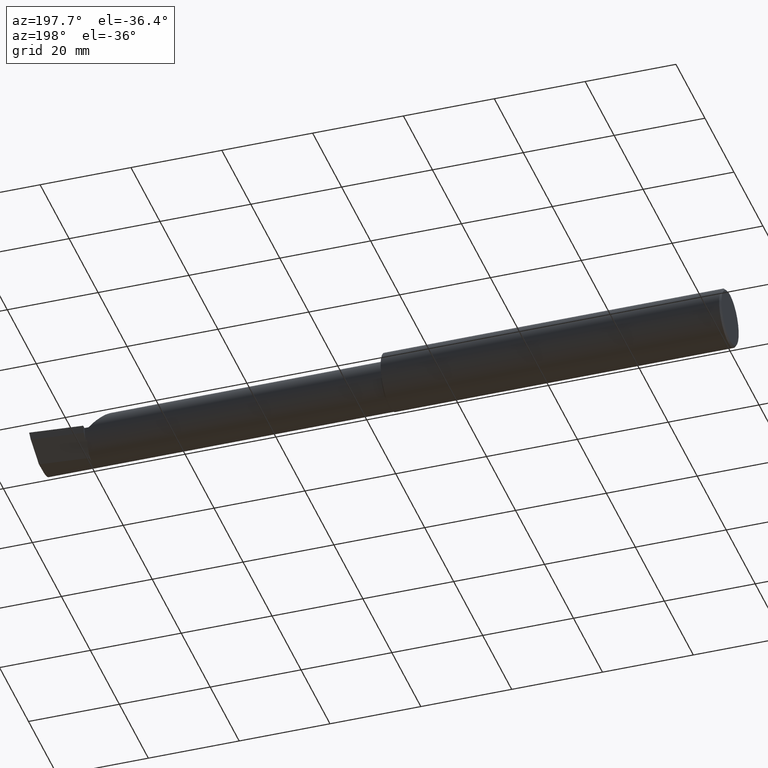
[diagram: clean part render]
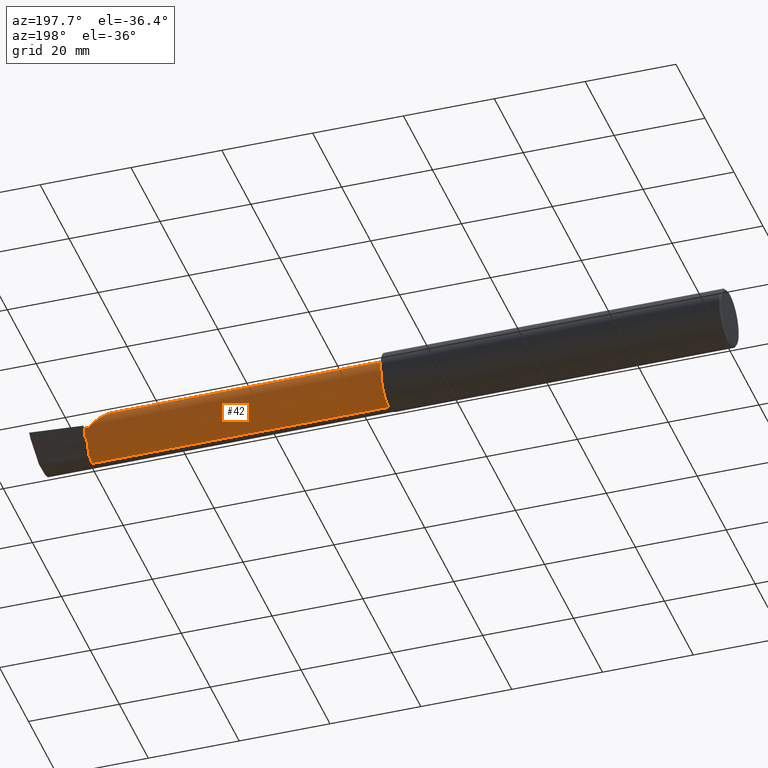
[diagram: same view with one face highlighted and labeled with its STEP entity id]
A machine part, auxiliary view. The second image highlights one B-rep face of the part: STEP entity #42.
In plain terms, the highlighted cylindrical surface (edge-blend (fillet) strip) has radius 5.414 mm, axis along (-1, -0, -0).
Its self-contained STEP definition (entity closure, byte-faithful):
#3 = CARTESIAN_POINT ( 'NONE',  ( 5.540349815208493567, 0.05592018782259736837, -0.1832193089843159595 ) ) ;
#10 = CARTESIAN_POINT ( 'NONE',  ( 4.678149108241350816E-32, 0.1601499999999999591, 4.235963549344508711E-16 ) ) ;
#22 =( BOUNDED_CURVE ( )  B_SPLINE_CURVE ( 3, ( #723, #344, #398, #389 ),
 .UNSPECIFIED., .F., .F. ) 
 B_SPLINE_CURVE_WITH_KNOTS ( ( 4, 4 ),
 ( 2.868174658477152583, 2.883234730632701304 ),
 .UNSPECIFIED. ) 
 CURVE ( )  GEOMETRIC_REPRESENTATION_ITEM ( )  RATIONAL_B_SPLINE_CURVE ( ( 1.000000000000000000, 0.9999810996081960335, 0.9999810996081960335, 1.000000000000000000 ) ) 
 REPRESENTATION_ITEM ( '' )  );
#28 = CARTESIAN_POINT ( 'NONE',  ( 5.296849999999999170, 0.07186037918017482151, 0.2131500000000000061 ) ) ;
#31 = LINE ( 'NONE', #554, #634 ) ;
#37 = EDGE_CURVE ( 'NONE', #150, #759, #22, .T. ) ;
#42 = ADVANCED_FACE ( 'NONE', ( #214 ), #424, .T. ) ;
#53 =( BOUNDED_CURVE ( )  B_SPLINE_CURVE ( 3, ( #505, #28, #558, #422 ),
 .UNSPECIFIED., .F., .T. ) 
 B_SPLINE_CURVE_WITH_KNOTS ( ( 4, 4 ),
 ( 0.0000000000000000000, 1.570796326794897002 ),
 .UNSPECIFIED. ) 
 CURVE ( )  GEOMETRIC_REPRESENTATION_ITEM ( )  RATIONAL_B_SPLINE_CURVE ( ( 1.000000000000000000, 0.8047378541243649375, 0.8047378541243649375, 1.000000000000000000 ) ) 
 REPRESENTATION_ITEM ( '' )  );
#64 = CARTESIAN_POINT ( 'NONE',  ( 5.544999999999999929, 0.1601500000000002366, 4.235963549344514135E-16 ) ) ;
#66 = AXIS2_PLACEMENT_3D ( 'NONE', #197, #719, #225 ) ;
#88 =( BOUNDED_CURVE ( )  B_SPLINE_CURVE ( 3, ( #641, #443, #205, #433 ),
 .UNSPECIFIED., .F., .F. ) 
 B_SPLINE_CURVE_WITH_KNOTS ( ( 4, 4 ),
 ( 3.399950576546887593, 3.405787439796297722 ),
 .UNSPECIFIED. ) 
 CURVE ( )  GEOMETRIC_REPRESENTATION_ITEM ( )  RATIONAL_B_SPLINE_CURVE ( ( 1.000000000000000000, 0.9999971609209656886, 0.9999971609209656886, 1.000000000000000000 ) ) 
 REPRESENTATION_ITEM ( '' )  );
#91 = DIRECTION ( 'NONE',  ( -1.000000000000000000, -0.0000000000000000000, -0.0000000000000000000 ) ) ;
#111 = VERTEX_POINT ( 'NONE', #699 ) ;
#119 = CARTESIAN_POINT ( 'NONE',  ( 5.532795049205048166, 0.1343794326159110653, -0.1015966078791004507 ) ) ;
#150 = VERTEX_POINT ( 'NONE', #119 ) ;
#158 = CARTESIAN_POINT ( 'NONE',  ( 0.0000000000000000000, -0.05299999999999996381, -0.2131499999999999506 ) ) ;
#167 = ORIENTED_EDGE ( 'NONE', *, *, #653, .T. ) ;
#182 = CARTESIAN_POINT ( 'NONE',  ( 5.544999999999999929, -0.05299999999999998462, 0.0000000000000000000 ) ) ;
#197 = CARTESIAN_POINT ( 'NONE',  ( 2.975000000000000533, -0.05299999999999998462, 0.0000000000000000000 ) ) ;
#205 = CARTESIAN_POINT ( 'NONE',  ( 5.541916792879874265, 0.05627666367902717931, -0.1830073912696828786 ) ) ;
#211 = VECTOR ( 'NONE', #714, 39.37007874015748143 ) ;
#214 = FACE_OUTER_BOUND ( 'NONE', #509, .T. ) ;
#218 = VERTEX_POINT ( 'NONE', #64 ) ;
#219 = AXIS2_PLACEMENT_3D ( 'NONE', #485, #416, #638 ) ;
#225 = DIRECTION ( 'NONE',  ( 0.0000000000000000000, 0.0000000000000000000, 1.000000000000000000 ) ) ;
#253 = ORIENTED_EDGE ( 'NONE', *, *, #538, .T. ) ;
#269 = VECTOR ( 'NONE', #729, 39.37007874015748143 ) ;
#274 = VERTEX_POINT ( 'NONE', #708 ) ;
#295 = CARTESIAN_POINT ( 'NONE',  ( 5.534569588231482484, 0.1159501401920730174, -0.1355866241796506999 ) ) ;
#302 = CARTESIAN_POINT ( 'NONE',  ( 5.296849999999999170, -0.05299999999999998462, 0.2131499999999999506 ) ) ;
#322 = CIRCLE ( 'NONE', #475, 0.2131500000000002282 ) ;
#332 = ORIENTED_EDGE ( 'NONE', *, *, #685, .T. ) ;
#344 = CARTESIAN_POINT ( 'NONE',  ( 5.536975816846314125, 0.1338694103809240643, -0.1025372660271250541 ) ) ;
#349 = LINE ( 'NONE', #10, #211 ) ;
#374 = CARTESIAN_POINT ( 'NONE',  ( 5.510000000000000675, 0.1601499999999999035, -1.849216666712503932E-16 ) ) ;
#382 = CARTESIAN_POINT ( 'NONE',  ( 5.544999999999999929, -0.05299999999999998462, -0.2131499999999999229 ) ) ;
#389 = CARTESIAN_POINT ( 'NONE',  ( 5.544999999999999929, 0.1328281892403430642, -0.1044069278527784972 ) ) ;
#391 = EDGE_CURVE ( 'NONE', #677, #727, #710, .T. ) ;
#398 = CARTESIAN_POINT ( 'NONE',  ( 5.541044210672206205, 0.1333523194825144698, -0.1034740570574020080 ) ) ;
#399 = VERTEX_POINT ( 'NONE', #374 ) ;
#416 = DIRECTION ( 'NONE',  ( -1.000000000000000000, -0.0000000000000000000, -0.0000000000000000000 ) ) ;
#422 = CARTESIAN_POINT ( 'NONE',  ( 5.510000000000000675, 0.1601499999999999035, -1.849216666712503932E-16 ) ) ;
#424 = CYLINDRICAL_SURFACE ( 'NONE', #219, 0.2131499999999999506 ) ;
#426 = EDGE_CURVE ( 'NONE', #150, #274, #605, .T. ) ;
#433 = CARTESIAN_POINT ( 'NONE',  ( 5.540349815208493567, 0.05592018782259736837, -0.1832193089843159595 ) ) ;
#440 = EDGE_CURVE ( 'NONE', #563, #274, #88, .T. ) ;
#443 = CARTESIAN_POINT ( 'NONE',  ( 5.543466858877803993, 0.05663251955087997974, -0.1827944341085907531 ) ) ;
#452 = CIRCLE ( 'NONE', #669, 0.2131500000000002282 ) ;
#463 = ORIENTED_EDGE ( 'NONE', *, *, #440, .F. ) ;
#467 = CARTESIAN_POINT ( 'NONE',  ( 5.544999999999999929, -0.05299999999999998462, 0.0000000000000000000 ) ) ;
#471 = CARTESIAN_POINT ( 'NONE',  ( 5.532795049205048166, 0.1343794326159110653, -0.1015966078791004507 ) ) ;
#475 = AXIS2_PLACEMENT_3D ( 'NONE', #182, #589, #618 ) ;
#481 = EDGE_CURVE ( 'NONE', #739, #111, #31, .T. ) ;
#485 = CARTESIAN_POINT ( 'NONE',  ( 0.0000000000000000000, -0.05299999999999998462, 0.0000000000000000000 ) ) ;
#505 = CARTESIAN_POINT ( 'NONE',  ( 5.296849999999999170, -0.05299999999999998462, 0.2131499999999999506 ) ) ;
#509 = EDGE_LOOP ( 'NONE', ( #659, #510, #546, #742, #167, #253, #332, #733, #527, #463 ) ) ;
#510 = ORIENTED_EDGE ( 'NONE', *, *, #391, .T. ) ;
#514 = DIRECTION ( 'NONE',  ( -1.000000000000000000, -0.0000000000000000000, -0.0000000000000000000 ) ) ;
#527 = ORIENTED_EDGE ( 'NONE', *, *, #426, .T. ) ;
#538 = EDGE_CURVE ( 'NONE', #399, #218, #349, .T. ) ;
#546 = ORIENTED_EDGE ( 'NONE', *, *, #732, .F. ) ;
#554 = CARTESIAN_POINT ( 'NONE',  ( 0.0000000000000000000, -0.05299999999999998462, 0.2131499999999999506 ) ) ;
#558 = CARTESIAN_POINT ( 'NONE',  ( 5.385139620819824557, 0.1601499999999999868, 0.1248603791801747576 ) ) ;
#563 = VERTEX_POINT ( 'NONE', #656 ) ;
#572 = DIRECTION ( 'NONE',  ( 0.0000000000000000000, 0.0000000000000000000, 1.000000000000000000 ) ) ;
#589 = DIRECTION ( 'NONE',  ( -1.000000000000000000, -0.0000000000000000000, -0.0000000000000000000 ) ) ;
#605 =( BOUNDED_CURVE ( )  B_SPLINE_CURVE ( 3, ( #471, #295, #698, #3 ),
 .UNSPECIFIED., .F., .F. ) 
 B_SPLINE_CURVE_WITH_KNOTS ( ( 4, 4 ),
 ( 0.4968328636559340428, 1.034445644975082068 ),
 .UNSPECIFIED. ) 
 CURVE ( )  GEOMETRIC_REPRESENTATION_ITEM ( )  RATIONAL_B_SPLINE_CURVE ( ( 1.000000000000000000, 0.9760590552538822573, 0.9760590552538822573, 1.000000000000000000 ) ) 
 REPRESENTATION_ITEM ( '' )  );
#618 = DIRECTION ( 'NONE',  ( 0.0000000000000000000, 0.0000000000000000000, 1.000000000000000000 ) ) ;
#621 = EDGE_CURVE ( 'NONE', #563, #677, #322, .T. ) ;
#625 = CARTESIAN_POINT ( 'NONE',  ( 5.544999999999999929, 0.1328281892403430642, -0.1044069278527784972 ) ) ;
#633 = CARTESIAN_POINT ( 'NONE',  ( 2.975000000000000533, -0.05299999999999996381, -0.2131499999999997008 ) ) ;
#634 = VECTOR ( 'NONE', #91, 39.37007874015748143 ) ;
#638 = DIRECTION ( 'NONE',  ( 0.0000000000000000000, 0.0000000000000000000, 1.000000000000000000 ) ) ;
#641 = CARTESIAN_POINT ( 'NONE',  ( 5.544999999999999929, 0.05698775240724696101, -0.1825804393148462157 ) ) ;
#653 = EDGE_CURVE ( 'NONE', #739, #399, #53, .T. ) ;
#656 = CARTESIAN_POINT ( 'NONE',  ( 5.544999999999999929, 0.05698775240724696101, -0.1825804393148462157 ) ) ;
#659 = ORIENTED_EDGE ( 'NONE', *, *, #621, .T. ) ;
#669 = AXIS2_PLACEMENT_3D ( 'NONE', #467, #514, #572 ) ;
#677 = VERTEX_POINT ( 'NONE', #382 ) ;
#685 = EDGE_CURVE ( 'NONE', #218, #759, #452, .T. ) ;
#698 = CARTESIAN_POINT ( 'NONE',  ( 5.537149611766870372, 0.08915557130098433758, -0.1634615431086030857 ) ) ;
#699 = CARTESIAN_POINT ( 'NONE',  ( 2.975000000000000533, -0.05299999999999998462, 0.2131499999999997008 ) ) ;
#708 = CARTESIAN_POINT ( 'NONE',  ( 5.540349815208493567, 0.05592018782259736837, -0.1832193089843159595 ) ) ;
#710 = LINE ( 'NONE', #158, #269 ) ;
#714 = DIRECTION ( 'NONE',  ( 1.000000000000000000, 0.0000000000000000000, 0.0000000000000000000 ) ) ;
#719 = DIRECTION ( 'NONE',  ( -1.000000000000000000, -0.0000000000000000000, -0.0000000000000000000 ) ) ;
#723 = CARTESIAN_POINT ( 'NONE',  ( 5.532795049205048166, 0.1343794326159110653, -0.1015966078791004507 ) ) ;
#727 = VERTEX_POINT ( 'NONE', #633 ) ;
#729 = DIRECTION ( 'NONE',  ( -1.000000000000000000, -0.0000000000000000000, -0.0000000000000000000 ) ) ;
#732 = EDGE_CURVE ( 'NONE', #111, #727, #734, .T. ) ;
#733 = ORIENTED_EDGE ( 'NONE', *, *, #37, .F. ) ;
#734 = CIRCLE ( 'NONE', #66, 0.2131499999999997008 ) ;
#739 = VERTEX_POINT ( 'NONE', #302 ) ;
#742 = ORIENTED_EDGE ( 'NONE', *, *, #481, .F. ) ;
#759 = VERTEX_POINT ( 'NONE', #625 ) ;